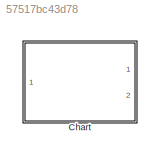
MODEL slx_57517bc43d78
KIND model
CONFIG AbsTol = auto
CONFIG EnableMultiTasking = off
CONFIG FixedStep = auto
CONFIG MaxStep = auto
CONFIG MinStep = auto
CONFIG RelTol = 1e-3
CONFIG SampleTimeConstraint = Unconstrained
CONFIG SolverName = VariableStepAuto
CONFIG StartTime = 0.0
CONFIG StopTime = 10.0
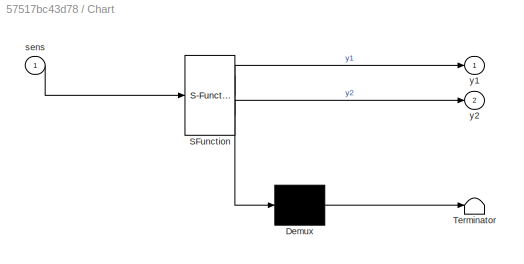
BLOCK [SubSystem] Chart
  ErrorFcn = Stateflow.Translate.translate
  PermitHierarchicalResolution = ExplicitOnly
  Ports = [1, 2]
  RequestExecContextInheritance = off
  SFBlockType = Chart
  TreatAsAtomicUnit = on
BLOCK [Demux] Chart/ Demux 
  Outputs = 1
  Ports = [1, 1]
BLOCK [S-Function] Chart/ SFunction 
  EnableBusSupport = off
  FunctionName = sf_sfun
  Parameters = GREEN,RED,YELLOW
  PortCounts = [1 3]
  Ports = [1, 3]
  SFcnIsStateOwnerBlock = off
  SFunctionDeploymentMode = off
  Tag = Stateflow S-Function 3
BLOCK [Terminator] Chart/ Terminator 
BLOCK [Inport] Chart/sens
BLOCK [Outport] Chart/y1
BLOCK [Outport] Chart/y2
  Port = 2
CHART Chart states=6 transitions=6
  STATE_LABEL 'Stop\ny1=RED;\ny2=GREEN;'
  STATE_LABEL 'StopForTraffic\ny1=RED;\ny2=GREEN;'
  STATE_LABEL 'StopToGo\ny1=RED;\ny2=YELLOW;'
  STATE_LABEL 'GoToStop\ny1=YELLOW;\ny2=RED;'
  STATE_LABEL 'Go\ny1=GREEN;\ny2=RED;'
  STATE_LABEL 'after(10,tick)'
CHART  states=0 transitions=0
